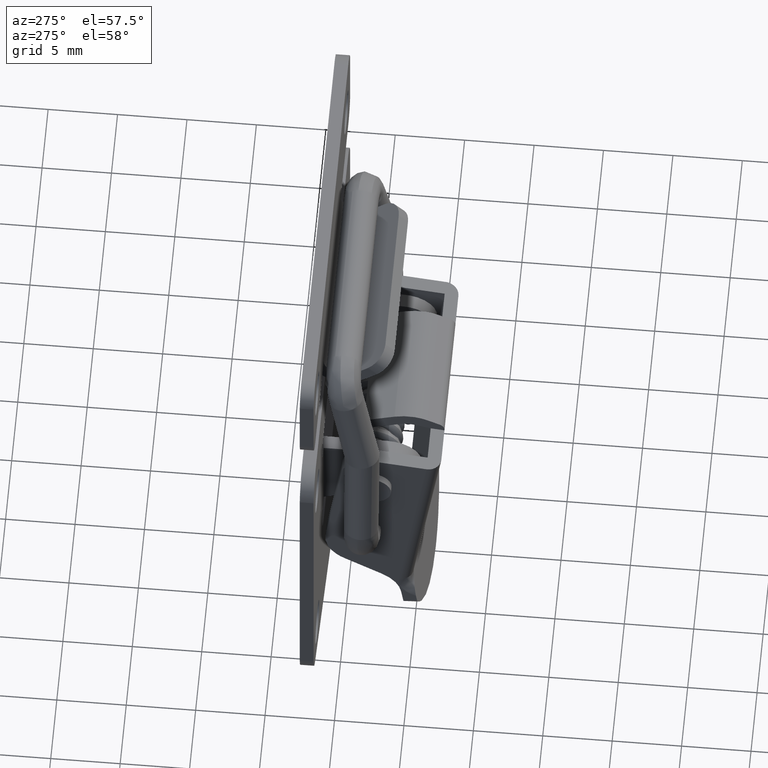
[diagram: clean part render]
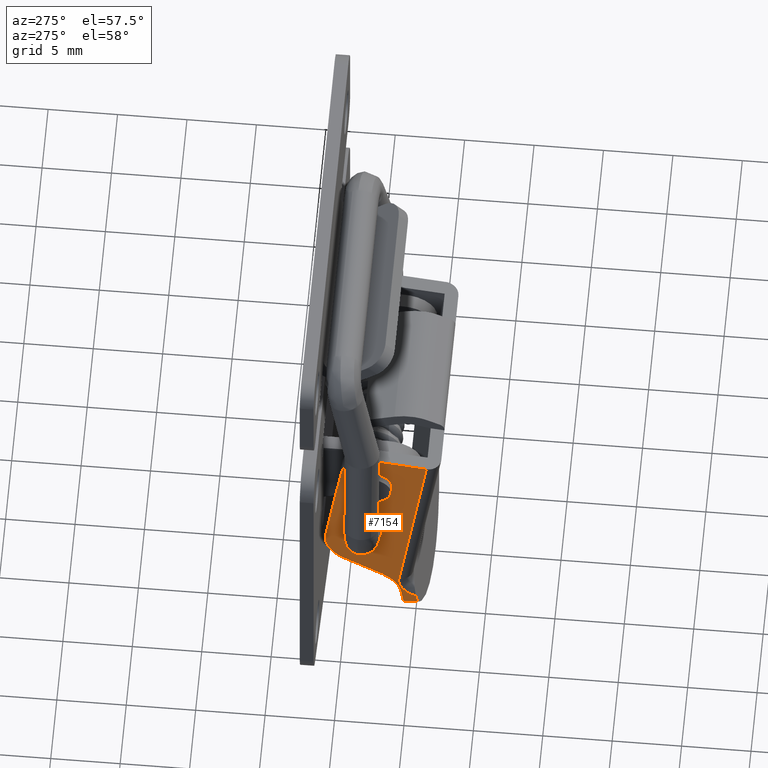
[diagram: same view with one face highlighted and labeled with its STEP entity id]
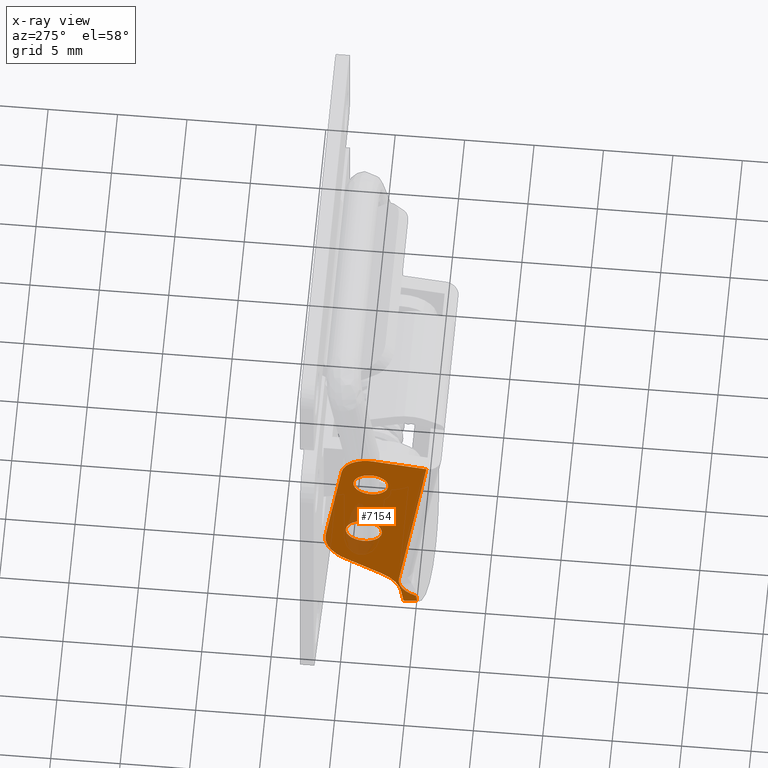
[diagram: x-ray of the same camera — body ghosted, the highlighted face saturated]
A machine part, auxiliary view. The second image highlights one B-rep face of the part: STEP entity #7154.
The next image is the same camera in x-ray: the body ghosted, the highlighted face saturated — about 8% of this face is hidden behind the body in this view.
In plain terms, the highlighted face is a freeform B-spline surface patch.
Its self-contained STEP definition (entity closure, byte-faithful):
#5082=CARTESIAN_POINT('',(-0.758738092062375,7.999995999999999,-13.602457206536389));
#5083=VERTEX_POINT('',#5082);
#5089=CARTESIAN_POINT('',(-2.0,7.999996000000000,-15.0));
#5090=VERTEX_POINT('',#5089);
#5091=CARTESIAN_POINT('',(-0.758738092062375,7.999995999999999,-13.602457206536389));
#5092=CARTESIAN_POINT('',(-0.750000000000000,7.999996000000000,-13.675969850290940));
#5093=CARTESIAN_POINT('',(-0.750000000000000,7.999996000000000,-13.750000000000000));
#5094=CARTESIAN_POINT('',(-0.750000000000000,7.999996000000000,-14.999999999999995));
#5095=CARTESIAN_POINT('',(-2.0,7.999996000000000,-15.0));
#5103=(BOUNDED_CURVE()B_SPLINE_CURVE(2,(#5091,#5092,#5093,#5094,#5095),.UNSPECIFIED.,.F.,.U.)B_SPLINE_CURVE_WITH_KNOTS((3,2,3),(0.229562473476795,0.250000000000000,0.500000000000000),.UNSPECIFIED.)CURVE()GEOMETRIC_REPRESENTATION_ITEM()RATIONAL_B_SPLINE_CURVE((0.956026754111740,0.976055948288133,1.0,0.707106781186548,1.0))REPRESENTATION_ITEM(''));
#5104=EDGE_CURVE('',#5083,#5090,#5103,.T.);
#5106=CARTESIAN_POINT('',(-3.247668498024976,7.999996000000000,-13.826310674457130));
#5107=VERTEX_POINT('',#5106);
#5108=CARTESIAN_POINT('',(-2.0,7.999996000000000,-15.0));
#5109=CARTESIAN_POINT('',(-3.175882583559311,7.999996000000000,-15.000000000000004));
#5110=CARTESIAN_POINT('',(-3.247668498024976,7.999996000000000,-13.826310674457130));
#5118=(BOUNDED_CURVE()B_SPLINE_CURVE(2,(#5108,#5109,#5110),.UNSPECIFIED.,.F.,.U.)B_SPLINE_CURVE_WITH_KNOTS((3,3),(0.500000000000000,0.739332962231305),.UNSPECIFIED.)CURVE()GEOMETRIC_REPRESENTATION_ITEM()RATIONAL_B_SPLINE_CURVE((1.0,0.719603993295659,0.976072041650347))REPRESENTATION_ITEM(''));
#5119=EDGE_CURVE('',#5090,#5107,#5118,.T.);
#5193=CARTESIAN_POINT('',(-2.0,7.999996000000000,-12.500000000000000));
#5194=VERTEX_POINT('',#5193);
#5195=CARTESIAN_POINT('',(-3.247668498024976,7.999996000000000,-13.826310674457130));
#5196=CARTESIAN_POINT('',(-3.250000000000000,7.999996000000000,-13.788190954161895));
#5197=CARTESIAN_POINT('',(-3.250000000000000,7.999996000000000,-13.750000000000000));
#5198=CARTESIAN_POINT('',(-3.250000000000000,7.999996000000000,-12.500000000000000));
#5199=CARTESIAN_POINT('',(-2.0,7.999996000000000,-12.500000000000000));
#5207=(BOUNDED_CURVE()B_SPLINE_CURVE(2,(#5195,#5196,#5197,#5198,#5199),.UNSPECIFIED.,.F.,.U.)B_SPLINE_CURVE_WITH_KNOTS((3,2,3),(0.739332962231305,0.750000000000000,1.0),.UNSPECIFIED.)CURVE()GEOMETRIC_REPRESENTATION_ITEM()RATIONAL_B_SPLINE_CURVE((0.976072041650347,0.987502787890888,1.0,0.707106781186548,1.0))REPRESENTATION_ITEM(''));
#5208=EDGE_CURVE('',#5107,#5194,#5207,.T.);
#5210=CARTESIAN_POINT('',(-2.0,7.999996000000000,-12.500000000000000));
#5211=CARTESIAN_POINT('',(-0.889781842817794,7.999996000000000,-12.500000000000000));
#5212=CARTESIAN_POINT('',(-0.758738092062375,7.999995999999999,-13.602457206536386));
#5220=(BOUNDED_CURVE()B_SPLINE_CURVE(2,(#5210,#5211,#5212),.UNSPECIFIED.,.F.,.U.)B_SPLINE_CURVE_WITH_KNOTS((3,3),(0.0,0.229562473476795),.UNSPECIFIED.)CURVE()GEOMETRIC_REPRESENTATION_ITEM()RATIONAL_B_SPLINE_CURVE((1.0,0.731050832898415,0.956026754111740))REPRESENTATION_ITEM(''));
#5221=EDGE_CURVE('',#5194,#5083,#5220,.T.);
#5454=CARTESIAN_POINT('',(-0.209087615738247,7.999995999999999,-19.846555494853568));
#5455=VERTEX_POINT('',#5454);
#5461=CARTESIAN_POINT('',(-1.500000000000000,7.999996000000000,-21.300000000000001));
#5462=VERTEX_POINT('',#5461);
#5463=CARTESIAN_POINT('',(-0.209087615738247,7.999995999999999,-19.846555494853561));
#5464=CARTESIAN_POINT('',(-0.200000000000000,7.999996000000000,-19.923008644358884));
#5465=CARTESIAN_POINT('',(-0.200000000000000,7.999996000000000,-20.0));
#5466=CARTESIAN_POINT('',(-0.200000000000000,7.999996000000000,-21.300000000000008));
#5467=CARTESIAN_POINT('',(-1.500000000000000,7.999996000000000,-21.300000000000001));
#5475=(BOUNDED_CURVE()B_SPLINE_CURVE(2,(#5463,#5464,#5465,#5466,#5467),.UNSPECIFIED.,.F.,.U.)B_SPLINE_CURVE_WITH_KNOTS((3,2,3),(0.229562473491385,0.250000000000000,0.500000000000000),.UNSPECIFIED.)CURVE()GEOMETRIC_REPRESENTATION_ITEM()RATIONAL_B_SPLINE_CURVE((0.956026754140337,0.976055948305226,1.0,0.707106781186548,1.0))REPRESENTATION_ITEM(''));
#5476=EDGE_CURVE('',#5455,#5462,#5475,.T.);
#5478=CARTESIAN_POINT('',(-2.797575230057130,7.999996000000000,-20.079363230416661));
#5479=VERTEX_POINT('',#5478);
#5480=CARTESIAN_POINT('',(-1.500000000000000,7.999996000000000,-21.300000000000001));
#5481=CARTESIAN_POINT('',(-2.722917643327031,7.999996000000000,-21.300000000000001));
#5482=CARTESIAN_POINT('',(-2.797575230057130,7.999996000000000,-20.079363230416661));
#5490=(BOUNDED_CURVE()B_SPLINE_CURVE(2,(#5480,#5481,#5482),.UNSPECIFIED.,.F.,.U.)B_SPLINE_CURVE_WITH_KNOTS((3,3),(0.500000000000000,0.739332927928400),.UNSPECIFIED.)CURVE()GEOMETRIC_REPRESENTATION_ITEM()RATIONAL_B_SPLINE_CURVE((1.0,0.719604033484012,0.976071968132703))REPRESENTATION_ITEM(''));
#5491=EDGE_CURVE('',#5462,#5479,#5490,.T.);
#5565=CARTESIAN_POINT('',(-1.500000000000000,7.999996000000000,-18.699999999999999));
#5566=VERTEX_POINT('',#5565);
#5567=CARTESIAN_POINT('',(-2.797575230057130,7.999996000000000,-20.079363230416664));
#5568=CARTESIAN_POINT('',(-2.799999999999999,7.999996000000000,-20.039718721671285));
#5569=CARTESIAN_POINT('',(-2.800000000000000,7.999996000000000,-20.0));
#5570=CARTESIAN_POINT('',(-2.800000000000000,7.999996000000000,-18.699999999999999));
#5571=CARTESIAN_POINT('',(-1.500000000000000,7.999996000000000,-18.699999999999999));
#5579=(BOUNDED_CURVE()B_SPLINE_CURVE(2,(#5567,#5568,#5569,#5570,#5571),.UNSPECIFIED.,.F.,.U.)B_SPLINE_CURVE_WITH_KNOTS((3,2,3),(0.739332927928399,0.750000000000000,1.0),.UNSPECIFIED.)CURVE()GEOMETRIC_REPRESENTATION_ITEM()RATIONAL_B_SPLINE_CURVE((0.976071968132702,0.987502747702535,1.0,0.707106781186548,1.0))REPRESENTATION_ITEM(''));
#5580=EDGE_CURVE('',#5479,#5566,#5579,.T.);
#5582=CARTESIAN_POINT('',(-1.500000000000000,7.999996000000000,-18.699999999999999));
#5583=CARTESIAN_POINT('',(-0.345373116430126,7.999996000000000,-18.700000000000006));
#5584=CARTESIAN_POINT('',(-0.209087615738247,7.999995999999999,-19.846555494853565));
#5592=(BOUNDED_CURVE()B_SPLINE_CURVE(2,(#5582,#5583,#5584),.UNSPECIFIED.,.F.,.U.)B_SPLINE_CURVE_WITH_KNOTS((3,3),(0.0,0.229562473491385),.UNSPECIFIED.)CURVE()GEOMETRIC_REPRESENTATION_ITEM()RATIONAL_B_SPLINE_CURVE((1.0,0.731050832881321,0.956026754140337))REPRESENTATION_ITEM(''));
#5593=EDGE_CURVE('',#5566,#5455,#5592,.T.);
#5691=CARTESIAN_POINT('',(-4.178057178709395,7.999996000000000,-27.628267689647551));
#5692=VERTEX_POINT('',#5691);
#5698=CARTESIAN_POINT('',(-2.817907195976975,7.999996000000000,-25.502356059760750));
#5699=VERTEX_POINT('',#5698);
#5700=CARTESIAN_POINT('',(-2.817907195976981,7.999996000000000,-25.502356059760739));
#5701=CARTESIAN_POINT('',(-3.990813999999988,7.999996000000000,-26.249999999999908));
#5702=CARTESIAN_POINT('',(-4.178057178709391,7.999996000000000,-27.628267689647551));
#5710=(BOUNDED_CURVE()B_SPLINE_CURVE(2,(#5700,#5701,#5702),.UNSPECIFIED.,.F.,.U.)CURVE()GEOMETRIC_REPRESENTATION_ITEM()QUASI_UNIFORM_CURVE()RATIONAL_B_SPLINE_CURVE((1.0,0.907231621876639,1.0))REPRESENTATION_ITEM(''));
#5711=EDGE_CURVE('',#5699,#5692,#5710,.T.);
#5752=CARTESIAN_POINT('',(-0.114124179828324,7.999996000000000,-23.778888363255248));
#5753=VERTEX_POINT('',#5752);
#5759=CARTESIAN_POINT('',(1.247016302978266,7.999996000000000,-20.852631458838399));
#5760=VERTEX_POINT('',#5759);
#5761=CARTESIAN_POINT('',(1.247016302978260,7.999996000000000,-20.852631458838399));
#5762=CARTESIAN_POINT('',(1.500000000000009,7.999996000000000,-22.750000000000014));
#5763=CARTESIAN_POINT('',(-0.114124179828317,7.999996000000000,-23.778888363255259));
#5771=(BOUNDED_CURVE()B_SPLINE_CURVE(2,(#5761,#5762,#5763),.UNSPECIFIED.,.F.,.U.)CURVE()GEOMETRIC_REPRESENTATION_ITEM()QUASI_UNIFORM_CURVE()RATIONAL_B_SPLINE_CURVE((1.0,0.843015702954737,1.0))REPRESENTATION_ITEM(''));
#5772=EDGE_CURVE('',#5760,#5753,#5771,.T.);
#5926=CARTESIAN_POINT('',(-5.344104464262640,7.999996000000000,-28.782889904722701));
#5927=VERTEX_POINT('',#5926);
#5928=CARTESIAN_POINT('',(-4.353205569710156,7.999996000000000,-28.917507542730348));
#5929=VERTEX_POINT('',#5928);
#5930=CARTESIAN_POINT('',(-5.344104464262640,7.999996000000000,-28.782889904722701));
#5931=CARTESIAN_POINT('',(-4.353205569710156,7.999996000000000,-28.917507542730348));
#5932=QUASI_UNIFORM_CURVE('',1,(#5930,#5931),.UNSPECIFIED.,.F.,.U.);
#5933=EDGE_CURVE('',#5927,#5929,#5932,.T.);
#6493=CARTESIAN_POINT('',(-5.251283466644950,7.999996000000000,-28.099649392618801));
#6494=VERTEX_POINT('',#6493);
#6530=CARTESIAN_POINT('',(-4.026561013551754,7.999996000000000,-25.984419423151000));
#6531=VERTEX_POINT('',#6530);
#6545=CARTESIAN_POINT('',(-5.251283466644950,7.999996000000000,-28.099649392618801));
#6546=CARTESIAN_POINT('',(-3.822519141734332,7.999996000000001,-27.514733461781550));
#6547=CARTESIAN_POINT('',(-4.026561013551754,7.999996000000000,-25.984419423151000));
#6555=(BOUNDED_CURVE()B_SPLINE_CURVE(2,(#6545,#6546,#6547),.UNSPECIFIED.,.F.,.U.)CURVE()GEOMETRIC_REPRESENTATION_ITEM()QUASI_UNIFORM_CURVE()RATIONAL_B_SPLINE_CURVE((1.0,0.791590846379721,1.0))REPRESENTATION_ITEM(''));
#6556=EDGE_CURVE('',#6494,#6531,#6555,.T.);
#6575=CARTESIAN_POINT('',(-6.008772078947930,7.999996000000000,-11.117836432679781));
#6576=VERTEX_POINT('',#6575);
#6592=CARTESIAN_POINT('',(-4.026561013551754,7.999996000000000,-25.984419423151000));
#6593=CARTESIAN_POINT('',(-6.008772078947930,7.999996000000000,-11.117836432679781));
#6594=QUASI_UNIFORM_CURVE('',1,(#6592,#6593),.UNSPECIFIED.,.F.,.U.);
#6595=EDGE_CURVE('',#6531,#6576,#6594,.T.);
#6946=CARTESIAN_POINT('',(-2.817907195976975,7.999996000000000,-25.502356059760750));
#6947=CARTESIAN_POINT('',(-0.114124179828324,7.999996000000000,-23.778888363255248));
#6948=QUASI_UNIFORM_CURVE('',1,(#6946,#6947),.UNSPECIFIED.,.F.,.U.);
#6949=EDGE_CURVE('',#5699,#5753,#6948,.T.);
#6988=CARTESIAN_POINT('',(0.109807007986550,7.999996000000000,-12.323603041451999));
#6989=VERTEX_POINT('',#6988);
#6995=CARTESIAN_POINT('',(-2.137480134640465,7.999996000000000,-10.601665157895800));
#6996=VERTEX_POINT('',#6995);
#6997=CARTESIAN_POINT('',(0.109807007986554,7.999996000000000,-12.323603041451999));
#6998=CARTESIAN_POINT('',(0.001750312132890,7.999996000000000,-11.501118067029072));
#6999=CARTESIAN_POINT('',(-0.656726982092221,7.999996000000000,-10.996573286399761));
#7000=CARTESIAN_POINT('',(-1.315204276317332,7.999996000000000,-10.492028505770454));
#7001=CARTESIAN_POINT('',(-2.137480134640467,7.999996000000000,-10.601665157895781));
#7009=(BOUNDED_CURVE()B_SPLINE_CURVE(2,(#6997,#6998,#6999,#7000,#7001),.UNSPECIFIED.,.F.,.U.)B_SPLINE_CURVE_WITH_KNOTS((3,2,3),(0.0,0.500000000000000,1.0),.UNSPECIFIED.)CURVE()GEOMETRIC_REPRESENTATION_ITEM()RATIONAL_B_SPLINE_CURVE((1.0,0.923695623273026,1.0,0.923695623273026,1.0))REPRESENTATION_ITEM(''));
#7010=EDGE_CURVE('',#6989,#6996,#7009,.T.);
#7031=CARTESIAN_POINT('',(1.247016302978266,7.999996000000000,-20.852631458838399));
#7032=CARTESIAN_POINT('',(0.109807007986550,7.999996000000000,-12.323603041451999));
#7033=QUASI_UNIFORM_CURVE('',1,(#7031,#7032),.UNSPECIFIED.,.F.,.U.);
#7034=EDGE_CURVE('',#5760,#6989,#7033,.T.);
#7112=CARTESIAN_POINT('',(-6.372486327855216,7.999996000000001,-9.669010025815215));
#7113=CARTESIAN_POINT('',(1.636512059607093,7.999996000000001,-9.669010025815215));
#7114=CARTESIAN_POINT('',(-6.372486327855216,7.999996000000001,-29.833228757516739));
#7115=CARTESIAN_POINT('',(1.636512059607093,7.999996000000001,-29.833228757516739));
#7116=B_SPLINE_SURFACE_WITH_KNOTS('',1,1,((#7112,#7114),(#7113,#7115)),.UNSPECIFIED.,.F.,.F.,.U.,(2,2),(2,2),(0.0,8.008998387462309),(0.0,20.164218731701521),.UNSPECIFIED.);
#7117=ORIENTED_EDGE('',*,*,#7034,.F.);
#7118=ORIENTED_EDGE('',*,*,#5772,.T.);
#7119=ORIENTED_EDGE('',*,*,#6949,.F.);
#7120=ORIENTED_EDGE('',*,*,#5711,.T.);
#7121=CARTESIAN_POINT('',(-4.353205569710156,7.999996000000000,-28.917507542730348));
#7122=CARTESIAN_POINT('',(-4.178057178709395,7.999996000000000,-27.628267689647551));
#7123=QUASI_UNIFORM_CURVE('',1,(#7121,#7122),.UNSPECIFIED.,.F.,.U.);
#7124=EDGE_CURVE('',#5929,#5692,#7123,.T.);
#7125=ORIENTED_EDGE('',*,*,#7124,.F.);
#7126=ORIENTED_EDGE('',*,*,#5933,.F.);
#7127=CARTESIAN_POINT('',(-5.251283466644950,7.999996000000000,-28.099649392618801));
#7128=CARTESIAN_POINT('',(-5.344104464262640,7.999996000000000,-28.782889904722701));
#7129=QUASI_UNIFORM_CURVE('',1,(#7127,#7128),.UNSPECIFIED.,.F.,.U.);
#7130=EDGE_CURVE('',#6494,#5927,#7129,.T.);
#7131=ORIENTED_EDGE('',*,*,#7130,.F.);
#7132=ORIENTED_EDGE('',*,*,#6556,.T.);
#7133=ORIENTED_EDGE('',*,*,#6595,.T.);
#7134=CARTESIAN_POINT('',(-2.137480134640465,7.999996000000000,-10.601665157895800));
#7135=CARTESIAN_POINT('',(-6.008772078947930,7.999996000000000,-11.117836432679781));
#7136=QUASI_UNIFORM_CURVE('',1,(#7134,#7135),.UNSPECIFIED.,.F.,.U.);
#7137=EDGE_CURVE('',#6996,#6576,#7136,.T.);
#7138=ORIENTED_EDGE('',*,*,#7137,.F.);
#7139=ORIENTED_EDGE('',*,*,#7010,.F.);
#7140=EDGE_LOOP('',(#7117,#7118,#7119,#7120,#7125,#7126,#7131,#7132,#7133,#7138,#7139));
#7141=FACE_OUTER_BOUND('',#7140,.T.);
#7142=ORIENTED_EDGE('',*,*,#5491,.F.);
#7143=ORIENTED_EDGE('',*,*,#5476,.F.);
#7144=ORIENTED_EDGE('',*,*,#5593,.F.);
#7145=ORIENTED_EDGE('',*,*,#5580,.F.);
#7146=EDGE_LOOP('',(#7142,#7143,#7144,#7145));
#7147=FACE_BOUND('',#7146,.T.);
#7148=ORIENTED_EDGE('',*,*,#5119,.F.);
#7149=ORIENTED_EDGE('',*,*,#5104,.F.);
#7150=ORIENTED_EDGE('',*,*,#5221,.F.);
#7151=ORIENTED_EDGE('',*,*,#5208,.F.);
#7152=EDGE_LOOP('',(#7148,#7149,#7150,#7151));
#7153=FACE_BOUND('',#7152,.T.);
#7154=ADVANCED_FACE('',(#7141,#7147,#7153),#7116,.T.);